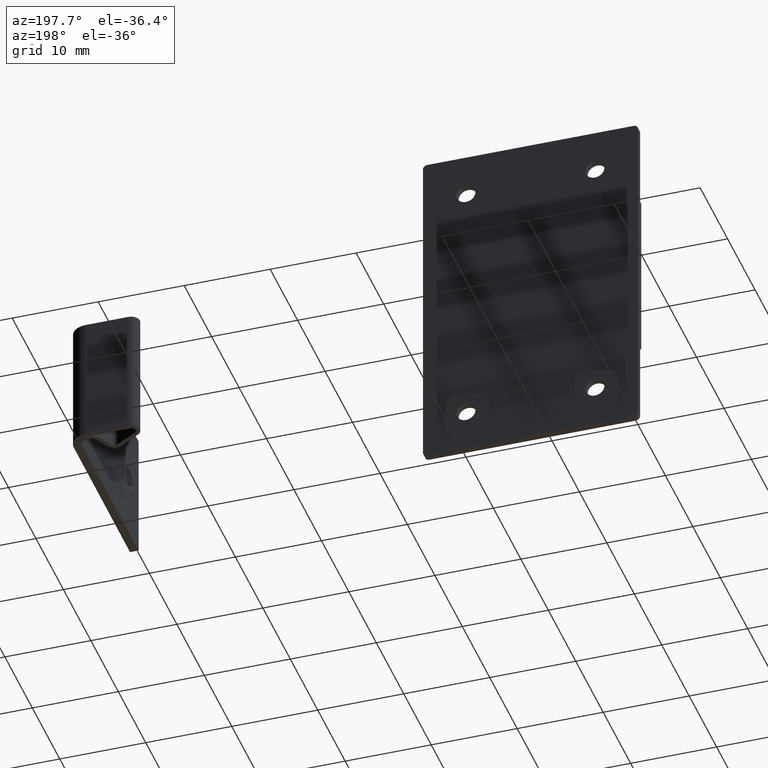
[diagram: clean part render]
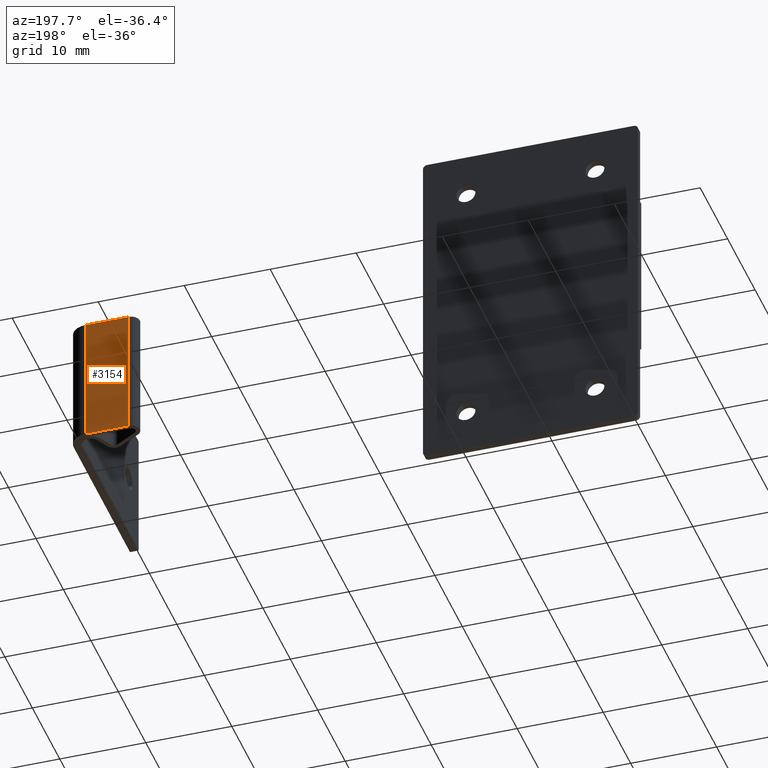
[diagram: same view with one face highlighted and labeled with its STEP entity id]
A machine part, auxiliary view. The second image highlights one B-rep face of the part: STEP entity #3154.
In plain terms, the highlighted face is a freeform B-spline surface patch.
Its self-contained STEP definition (entity closure, byte-faithful):
#2578=CARTESIAN_POINT('',(56.669917074853998,-2.0,7.500000000000170));
#2579=VERTEX_POINT('',#2578);
#2593=CARTESIAN_POINT('',(56.669917074853998,-7.000013701684500,7.500000000000170));
#2594=VERTEX_POINT('',#2593);
#2595=CARTESIAN_POINT('',(56.669917074853998,-7.000013701684500,7.500000000000170));
#2596=CARTESIAN_POINT('',(56.669917074853998,-2.0,7.500000000000170));
#2597=QUASI_UNIFORM_CURVE('',1,(#2595,#2596),.UNSPECIFIED.,.F.,.U.);
#2598=EDGE_CURVE('',#2594,#2579,#2597,.T.);
#2780=CARTESIAN_POINT('',(56.669917074853998,-7.000013701684500,-7.500000000000000));
#2781=VERTEX_POINT('',#2780);
#2797=CARTESIAN_POINT('',(56.669917074853998,-2.0,-7.500000000000000));
#2798=VERTEX_POINT('',#2797);
#2799=CARTESIAN_POINT('',(56.669917074853998,-7.000013701684500,-7.500000000000000));
#2800=CARTESIAN_POINT('',(56.669917074853998,-2.0,-7.500000000000000));
#2801=QUASI_UNIFORM_CURVE('',1,(#2799,#2800),.UNSPECIFIED.,.F.,.U.);
#2802=EDGE_CURVE('',#2781,#2798,#2801,.T.);
#3131=CARTESIAN_POINT('',(56.669917074853998,-2.0,-7.500000000000000));
#3132=CARTESIAN_POINT('',(56.669917074853998,-2.0,7.500000000000170));
#3133=QUASI_UNIFORM_CURVE('',1,(#3131,#3132),.UNSPECIFIED.,.F.,.U.);
#3134=EDGE_CURVE('',#2798,#2579,#3133,.T.);
#3139=CARTESIAN_POINT('',(56.669917074853998,-7.249764517202298,8.249249970927266));
#3140=CARTESIAN_POINT('',(56.669917074853998,-7.249764517202298,-8.249250373258448));
#3141=CARTESIAN_POINT('',(56.669917074853998,-1.750249184482203,8.249249970927266));
#3142=CARTESIAN_POINT('',(56.669917074853998,-1.750249184482203,-8.249250373258448));
#3143=B_SPLINE_SURFACE_WITH_KNOTS('',1,1,((#3139,#3141),(#3140,#3142)),.UNSPECIFIED.,.F.,.F.,.U.,(2,2),(2,2),(0.0,16.498500344185722),(0.0,5.499515332720095),.UNSPECIFIED.);
#3144=ORIENTED_EDGE('',*,*,#2598,.T.);
#3145=ORIENTED_EDGE('',*,*,#3134,.F.);
#3146=ORIENTED_EDGE('',*,*,#2802,.F.);
#3147=CARTESIAN_POINT('',(56.669917074853998,-7.000013701684500,-7.500000000000000));
#3148=CARTESIAN_POINT('',(56.669917074853998,-7.000013701684500,7.500000000000170));
#3149=QUASI_UNIFORM_CURVE('',1,(#3147,#3148),.UNSPECIFIED.,.F.,.U.);
#3150=EDGE_CURVE('',#2781,#2594,#3149,.T.);
#3151=ORIENTED_EDGE('',*,*,#3150,.T.);
#3152=EDGE_LOOP('',(#3144,#3145,#3146,#3151));
#3153=FACE_OUTER_BOUND('',#3152,.T.);
#3154=ADVANCED_FACE('',(#3153),#3143,.F.);